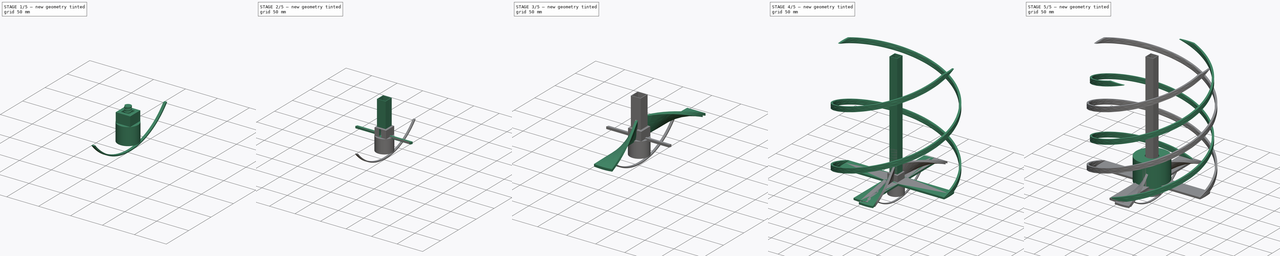
[diagram: build sequence overview — one tinted view per stage of 5, left to right]
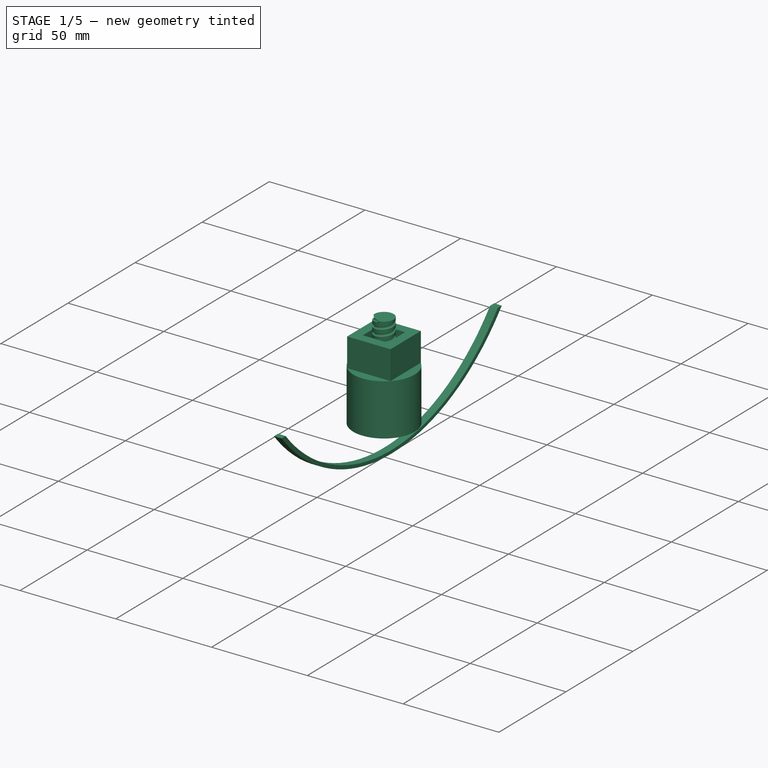
[diagram: stage 1 of 5 — iso view after this stage's code; geometry added in this stage tinted green]
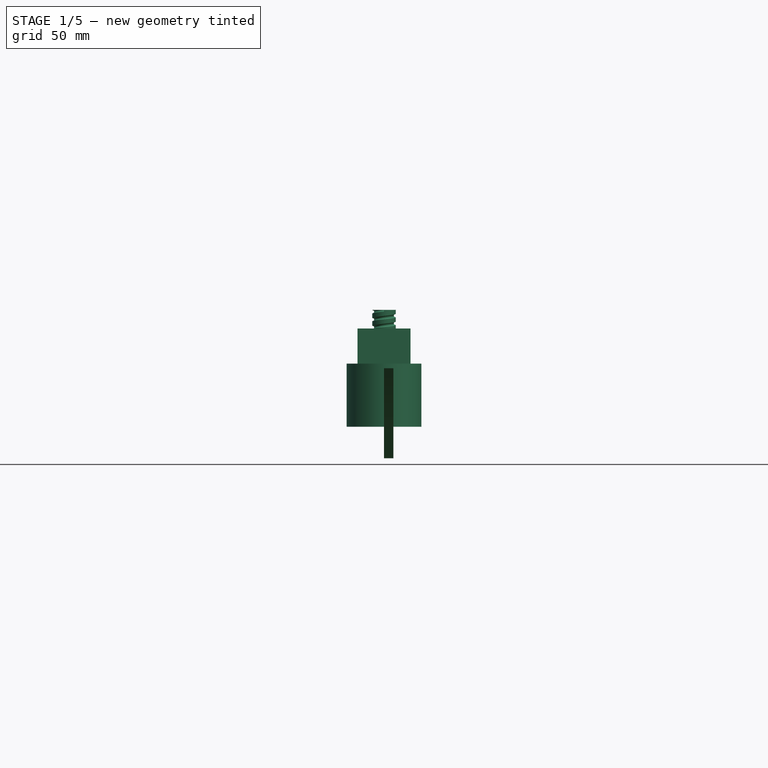
[diagram: stage 1 of 5 — front view after this stage's code; geometry added in this stage tinted green]
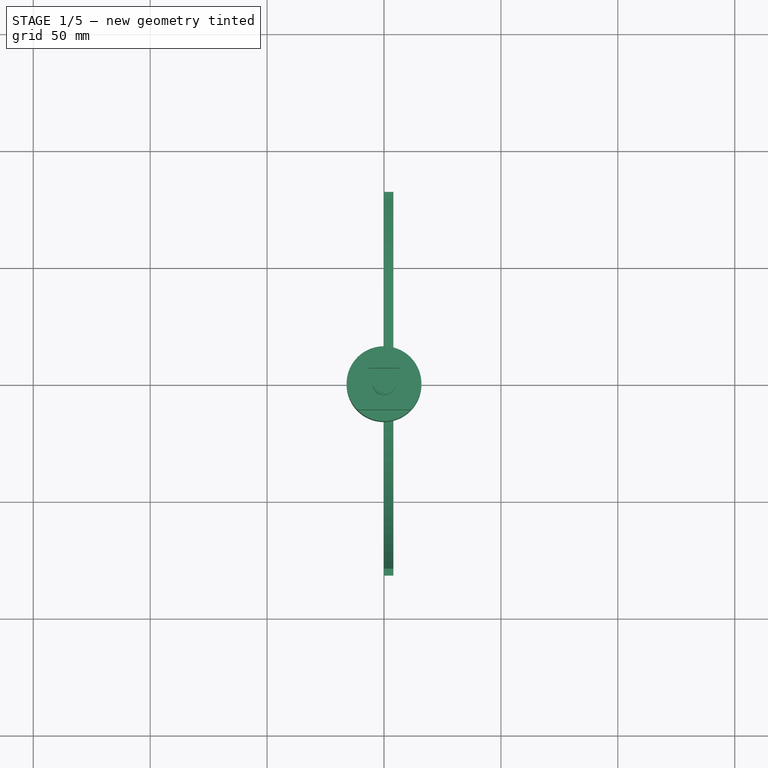
[diagram: stage 1 of 5 — top view after this stage's code; geometry added in this stage tinted green]
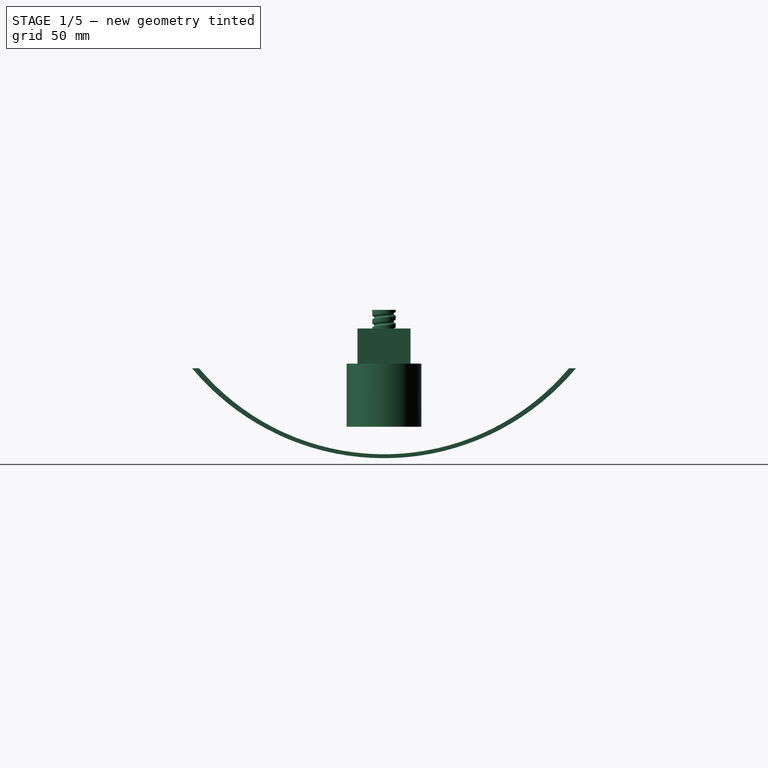
[diagram: stage 1 of 5 — right view after this stage's code; geometry added in this stage tinted green]
FCSTD DOCUMENT  (FreeCAD 0.21R33771 (Git))
Label: QfhAntenna2m-noSupport
License: All rights reserved
LicenseURL: http://en.wikipedia.org/wiki/All_rights_reserved
objects: Sketcher::SketchObject×26, PartDesign::Pad×13, PartDesign::Body×9, PartDesign::AdditiveHelix×6, PartDesign::Pocket×5, App::DocumentObjectGroup×3, Spreadsheet::Sheet×2, PartDesign::PolarPattern×2, PartDesign::FeatureBase×2, PartDesign::CoordinateSystem×1, PartDesign::Chamfer×1, PartDesign::SubtractiveHelix×1
note: 92 computed .brp shape members not serialized (recipe doc carries the construction recipe); baked Part::Feature solids carry a one-line shape summary decoded from their .brp

FEATURE [PartDesign::Body] Body014  label="DistancePin"
  Group = -> [Sketch057,Sketch058,Pad039,Pad038]
  Origin = -> Origin014
  Tip = -> Pad038
FEATURE [Sketcher::SketchObject] Sketch017
  FullyConstrained = true
  MapMode = 5
  Placement = pos=(0,0,0) rot=(1,0,0;3.14159rad)
  sketch-geometry (2):
    g0: Circle CenterX=0 CenterY=0 CenterZ=0 NormalX=0 NormalY=0 NormalZ=1 AngleXU=0 Radius=14
    g1: Circle CenterX=0 CenterY=0 CenterZ=0 NormalX=0 NormalY=0 NormalZ=1 AngleXU=0 Radius=16
  constraints (4):
    c: Coincident(g0,g-1)
    c: Coincident(g1,g0)
    c: Radius(g0) = 14
    c: Radius(g1) = 16
FEATURE [PartDesign::Pad] Pad040
  Direction = (0,0,-1)
  Length = 25
  Length2 = 10
  Placement = pos=(0,0,0) rot=(1,0,0;3.14159rad)
  Profile = -> Sketch017
  ReferenceAxis = -> Sketch017 [N_Axis]
  Type = 0
FEATURE [Sketcher::SketchObject] Sketch059
  ExternalGeometry = -> [Pad040]
  FullyConstrained = true
  MapMode = 5
  Support = -> [Pad040]
  sketch-geometry (1):
    g0: Circle CenterX=0 CenterY=0 CenterZ=0 NormalX=0 NormalY=0 NormalZ=1 AngleXU=0 Radius=16
  constraints (2):
    c: Coincident(g0,g-3)
    c: Tangent(g0,g-3)
FEATURE [PartDesign::Pad] Pad041
  BaseFeature = -> Pad040
  Direction = (0,-1e-16,1)
  Length = 2
  Length2 = 10
  Placement = pos=(0,0,0) rot=(1,0,0;3.14159rad)
  Profile = -> Sketch059
  ReferenceAxis = -> Sketch059 [N_Axis]
  Type = 0
FEATURE [Sketcher::SketchObject] Sketch060
  ExternalGeometry = -> [Pad041]
  FullyConstrained = true
  MapMode = 5
  Placement = pos=(0,-5e-16,2) rot=(0,0,1;0rad)
  Support = -> [Pad041]
  sketch-geometry (10):
    g0: LineSegment StartX=11.3137 StartY=-11.3137 StartZ=0 EndX=11.3137 EndY=11.3137 EndZ=0
    g1: LineSegment StartX=11.3137 StartY=11.3137 StartZ=0 EndX=-11.3137 EndY=11.3137 EndZ=0
    g2: LineSegment StartX=-11.3137 StartY=11.3137 StartZ=0 EndX=-11.3137 EndY=-11.3137 EndZ=0
    g3: LineSegment StartX=-11.3137 StartY=-11.3137 StartZ=0 EndX=11.3137 EndY=-11.3137 EndZ=0
    g4: Circle CenterX=0 CenterY=0 CenterZ=0 NormalX=0 NormalY=0 NormalZ=1 AngleXU=0 Radius=16
    g5: LineSegment StartX=6.5 StartY=-6.5 StartZ=0 EndX=6.5 EndY=6.5 EndZ=0
    g6: LineSegment StartX=6.5 StartY=6.5 StartZ=0 EndX=-6.5 EndY=6.5 EndZ=0
    g7: LineSegment StartX=-6.5 StartY=6.5 StartZ=0 EndX=-6.5 EndY=-6.5 EndZ=0
    g8: LineSegment StartX=-6.5 StartY=-6.5 StartZ=0 EndX=6.5 EndY=-6.5 EndZ=0
    g9: Circle CenterX=0 CenterY=0 CenterZ=0 NormalX=0 NormalY=0 NormalZ=1 AngleXU=0 Radius=9.19239
  constraints (28):
    c: Coincident(g0,g1)
    c: Coincident(g1,g2)
    c: Coincident(g2,g3)
    c: Coincident(g3,g0)
    c: Equal(g0,g1)
    c: Equal(g0,g2)
    c: Equal(g0,g3)
    c: PointOnObject(g0,g4)
    c: PointOnObject(g1,g4)
    c: PointOnObject(g2,g4)
    c: PointOnObject(g3,g4)
    c: Coincident(g4,g-1)
    c: PointOnObject(g0,g-3)
    c: Coincident(g5,g6)
    c: Coincident(g6,g7)
    c: Coincident(g7,g8)
    c: Coincident(g8,g5)
    c: Equal(g5,g6)
    c: Equal(g5,g7)
    c: Equal(g5,g8)
    c: PointOnObject(g5,g9)
    c: PointOnObject(g6,g9)
    c: PointOnObject(g7,g9)
    c: PointOnObject(g8,g9)
    c: DistanceX(g6,g6) = 13
    c: Horizontal(g6)
    c: Horizontal(g1)
    c: Coincident(g4,g9)
FEATURE [PartDesign::Pad] Pad042
  BaseFeature = -> Pad041
  Direction = (0,-4e-16,1)
  Length = 15
  Length2 = 10
  Placement = pos=(0,0,0) rot=(1,0,0;3.14159rad)
  Profile = -> Sketch060
  ReferenceAxis = -> Sketch060 [N_Axis]
  Type = 0
FEATURE [PartDesign::Body] Body008  label="Fork"
  Group = -> [Sketch017,LCS_7,Pad040,Sketch059,Pad041,Sketch060,Pad042,Sketch061,Pocket006,Sketch062,Pad043,Chamfer]
  Origin = -> Origin008
  Placement = pos=(0,-98.4,2.2e-14) rot=(-1,0,0;1.5708rad)
  Tip = -> Chamfer
FEATURE [App::DocumentObjectGroup] Group002  label="Support"
  Group = -> [Body008,Spreadsheet001,Body010]
FEATURE [App::DocumentObjectGroup] Group003  label="Matching"
FEATURE [Sketcher::SketchObject] Sketch063
  FullyConstrained = true
  MapMode = 5
  Support = -> [XY_Plane015]
  sketch-geometry (1):
    g0: Circle CenterX=0 CenterY=0 CenterZ=0 NormalX=0 NormalY=0 NormalZ=1 AngleXU=0 Radius=5
  constraints (2):
    c: Coincident(g0,g-1)
    c: Radius(g0) = 5
FEATURE [PartDesign::Pad] Pad044
  Direction = (0,0,1)
  Length = 25
  Length2 = 10
  Profile = -> Sketch063
  ReferenceAxis = -> Sketch063 [N_Axis]
  Type = 0
FEATURE [Sketcher::SketchObject] Sketch065
  FullyConstrained = false
  MapMode = 5
  Placement = pos=(0,0,0) rot=(0.57735,0.57735,0.57735;2.0944rad)
  Support = -> [YZ_Plane015]
  sketch-geometry (1):
    g0: Circle CenterX=4.94375 CenterY=0 CenterZ=0 NormalX=0 NormalY=0 NormalZ=1 AngleXU=0 Radius=0.75
  constraints (1):
    c: Diameter(g0) = 1.5
FEATURE [PartDesign::SubtractiveHelix] SubtractiveHelix001
  Angle = 0
  Axis = (-2e-16,3e-16,1)
  Base = (0,0,0)
  BaseFeature = -> Pad044
  Growth = 0
  HasBeenEdited = true
  Height = 25
  LeftHanded = false
  Mode = 2
  Outside = false
  Pitch = 3.33333
  Profile = -> Sketch065
  ReferenceAxis = -> Sketch065 [V_Axis]
  Turns = 7.5
FEATURE [PartDesign::Body] Body015  label="Coiltemplate_200nH"
  Group = -> [Sketch063,Pad044,Sketch065,SubtractiveHelix001]
  Origin = -> Origin015
  Tip = -> SubtractiveHelix001
FEATURE [Sketcher::SketchObject] Sketch066
  FullyConstrained = false
  MapMode = 5
  Placement = pos=(0,0,0) rot=(0.57735,0.57735,0.57735;2.0944rad)
  Support = -> [YZ_Plane016]
  sketch-geometry (4):
    g0: ArcOfCircle CenterX=0 CenterY=68.3732 CenterZ=0 NormalX=0 NormalY=0 NormalZ=1 AngleXU=0 Radius=106.825 StartAngle=3.83615 EndAngle=5.58863
    g1: ArcOfCircle CenterX=0 CenterY=66.6155 CenterZ=0 NormalX=0 NormalY=0 NormalZ=1 AngleXU=0 Radius=103.397 StartAngle=3.84166 EndAngle=5.58312
    g2: LineSegment StartX=-82.0778 StartY=1.563e-13 StartZ=0 EndX=-79.0778 EndY=5.68e-14 EndZ=0
    g3: LineSegment StartX=79.0778 StartY=0 StartZ=0 EndX=82.0778 EndY=0 EndZ=0
  constraints (11):
    c: PointOnObject(g0,g-2)
    c: PointOnObject(g0,g-1)
    c: PointOnObject(g0,g-1)
    c: PointOnObject(g1,g-2)
    c: PointOnObject(g1,g-1)
    c: PointOnObject(g1,g-1)
    c: DistanceX(g0,g1) = 3
    c: Coincident(g2,g1)
    c: Coincident(g3,g0)
    c: Coincident(g3,g1)
    c: Coincident(g2,g0)
FEATURE [PartDesign::Pad] Pad045
  Direction = (1,-2e-16,3e-16)
  Length = 4
  Length2 = 10
  Placement = pos=(0,0,0) rot=(1,1,1;2.0944rad)
  Profile = -> Sketch066
  ReferenceAxis = -> Sketch066 [N_Axis]
  Type = 0
FEATURE [PartDesign::Body] Body016  label="TopDistance"
  Group = -> [Sketch066,Pad045]
  Origin = -> Origin016
  Tip = -> Pad045
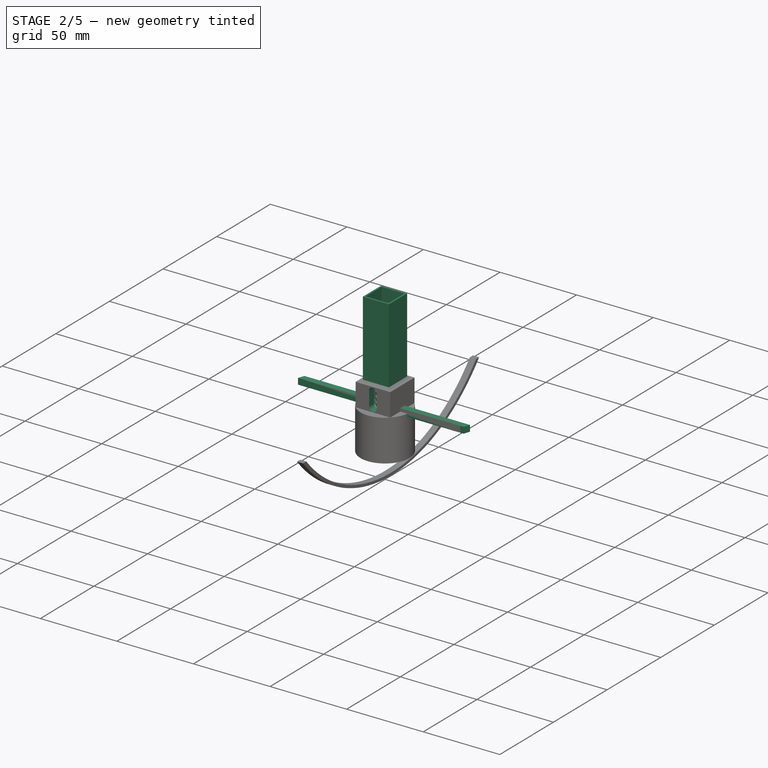
[diagram: stage 2 of 5 — iso view after this stage's code; geometry added in this stage tinted green]
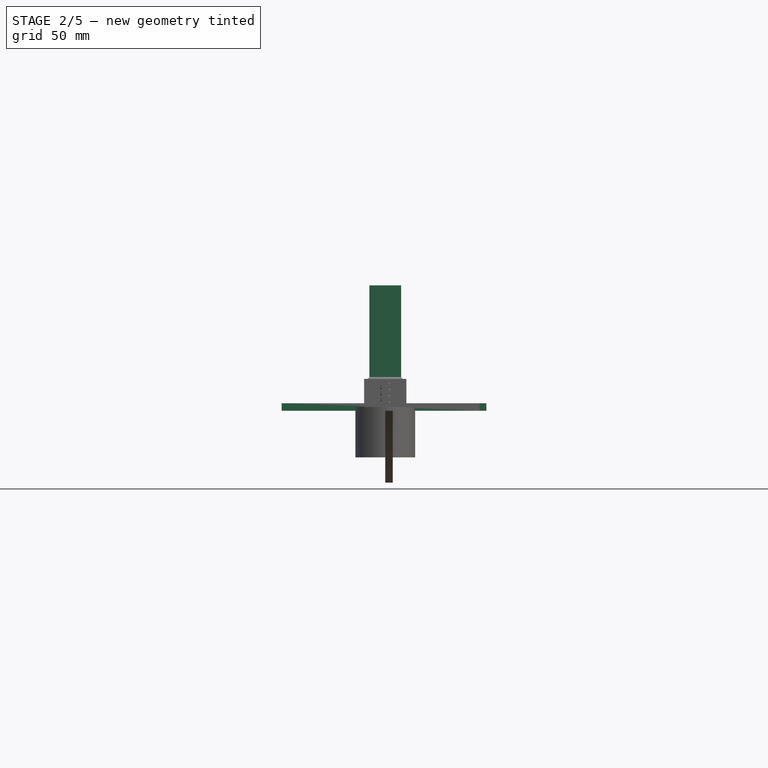
[diagram: stage 2 of 5 — front view after this stage's code; geometry added in this stage tinted green]
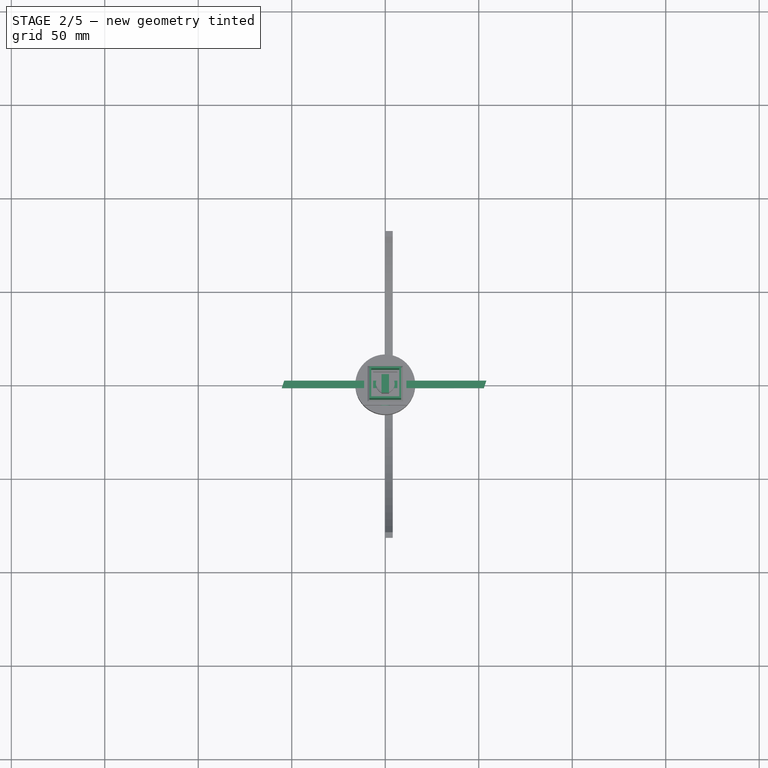
[diagram: stage 2 of 5 — top view after this stage's code; geometry added in this stage tinted green]
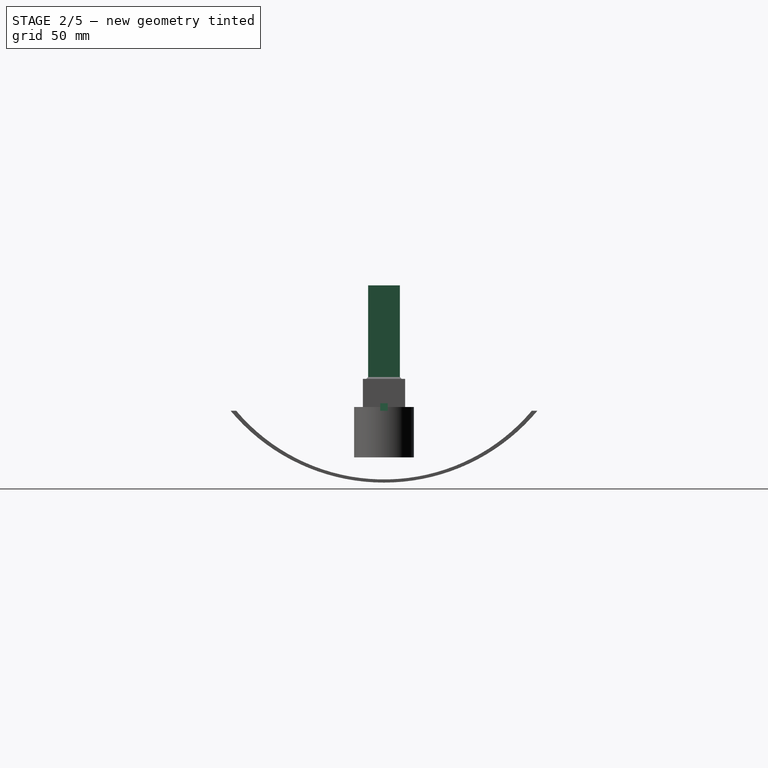
[diagram: stage 2 of 5 — right view after this stage's code; geometry added in this stage tinted green]
FEATURE [PartDesign::Body] Body  label="HelixAntenna"
  Group = -> [Sketch,Pad,Sketch046,Pad036,Sketch047,Sketch048,AdditiveHelix,PolarPattern001,Sketch049,AdditiveHelix001,PolarPattern002]
  Origin = -> Origin
  Tip = -> PolarPattern002
FEATURE [App::DocumentObjectGroup] Group  label="Antenna"
  Group = -> [Body]
FEATURE [Sketcher::SketchObject] Sketch050
  FullyConstrained = true
  MapMode = 5
  Support = -> [XY_Plane011]
  expr: Constraints[10] = Spreadsheet.helixCrossLength
  expr: Constraints[9] = Spreadsheet.helixThickness
  sketch-geometry (5):
    g0: LineSegment StartX=-2 StartY=-5 StartZ=0 EndX=-2 EndY=5 EndZ=0
    g1: LineSegment StartX=-2 StartY=5 StartZ=0 EndX=2 EndY=5 EndZ=0
    g2: LineSegment StartX=2 StartY=5 StartZ=0 EndX=2 EndY=-5 EndZ=0
    g3: LineSegment StartX=2 StartY=-5 StartZ=0 EndX=-2 EndY=-5 EndZ=0
    g4: GeomPoint X=2e-16 Y=4e-16 Z=0
  constraints (11):
    c: Coincident(g0,g1)
    c: Coincident(g1,g2)
    c: Coincident(g2,g3)
    c: Coincident(g3,g0)
    c: Horizontal(g1)
    c: Vertical(g0)
    c: Symmetric(g1,g0,g4)
    c: Symmetric(g0,g2,g-2)
    c: Symmetric(g1,g2,g-1)
    c: DistanceX(g0,g1) = 4
    c: DistanceY(g2,g1) = 10
FEATURE [PartDesign::Pad] Pad037
  Direction = (0,0,1)
  Length = 31.4795
  Length2 = 10
  Profile = -> Sketch050
  ReferenceAxis = -> Sketch050 [N_Axis]
  Type = 0
  expr: Length = Spreadsheet.helixBase
FEATURE [PartDesign::Body] Body013  label="SmallCrossover"
  Group = -> [Clone001,Sketch054,AdditiveHelix004,Sketch055,AdditiveHelix005,Sketch056,Pocket005]
  Origin = -> Origin013
  Tip = -> Pocket005
FEATURE [Sketcher::SketchObject] Sketch057
  FullyConstrained = true
  MapMode = 5
  Support = -> [XY_Plane014]
  expr: Constraints[5] = Spreadsheet.helixThickness / 2
  expr: Constraints[6] = Spreadsheet.helixThickness
  expr: Constraints[8] = Spreadsheet.helixElevation
  expr: Constraints[9] = Spreadsheet.D1Large / 2 - Spreadsheet.widthFoil
  sketch-geometry (4):
    g0: LineSegment StartX=52.7099 StartY=-2 StartZ=0 EndX=-55.3901 EndY=-2 EndZ=0
    g1: LineSegment StartX=-55.3901 StartY=-2 StartZ=0 EndX=-54.05 EndY=2 EndZ=0
    g2: LineSegment StartX=-54.05 StartY=2 StartZ=0 EndX=54.05 EndY=2 EndZ=0
    g3: LineSegment StartX=54.05 StartY=2 StartZ=0 EndX=52.7099 EndY=-2 EndZ=0
  constraints (11):
    c: Horizontal(g0)
    c: Coincident(g0,g1)
    c: Coincident(g1,g2)
    c: Coincident(g2,g3)
    c: Coincident(g3,g0)
    c: DistanceY(g-1,g1) = 2
    c: DistanceY(g0,g1) = 4
    c: Parallel(g1,g3)
    c: Angle(g1,g-2) = 0.323268
    c: DistanceX(g0,g0) = 108.1
    c: Symmetric(g1,g2,g-2)
FEATURE [Sketcher::SketchObject] Sketch058
  FullyConstrained = true
  MapMode = 5
  Support = -> [XY_Plane014]
  expr: Constraints[3] = Spreadsheet.D2Small / 2 - Spreadsheet.widthFoil
  expr: Constraints[5] = Spreadsheet.helixElevation
  sketch-geometry (6):
    g0: GeomPoint X=0 Y=0 Z=0
    g1: LineSegment StartX=-51.15 StartY=0 StartZ=0 EndX=51.15 EndY=0 EndZ=0
    g2: LineSegment StartX=-50.48 StartY=2 StartZ=0 EndX=-51.82 EndY=-2 EndZ=0
    g3: LineSegment StartX=51.82 StartY=2 StartZ=0 EndX=50.48 EndY=-2 EndZ=0
    g4: LineSegment StartX=51.82 StartY=2 StartZ=0 EndX=-50.48 EndY=2 EndZ=0
    g5: LineSegment StartX=-51.82 StartY=-2 StartZ=0 EndX=50.48 EndY=-2 EndZ=0
  constraints (16):
    c: Coincident(g0,g-1)
    c: PointOnObject(g1,g-1)
    c: Symmetric(g1,g1,g-2)
    c: DistanceX(g1,g1) = 102.3
    c: PointOnObject(g1,g2)
    c: Angle(g2,g-2) = 0.323268
    c: DistanceY(g-1,g2) = 2
    c: DistanceY(g2,g2) = 4
    c: Parallel(g2,g3)
    c: Horizontal(g3,g2)
    c: Horizontal(g2,g3)
    c: Coincident(g4,g3)
    c: Coincident(g4,g2)
    c: Coincident(g5,g2)
    c: Coincident(g5,g3)
    c: PointOnObject(g1,g3)
FEATURE [PartDesign::Pad] Pad039  label="SmallPin"
  Direction = (0,0,1)
  Length = 4
  Length2 = 10
  Profile = -> Sketch058
  ReferenceAxis = -> Sketch058 [N_Axis]
  Type = 0
  expr: Length = Spreadsheet.helixThickness
FEATURE [PartDesign::Pad] Pad038  label="LargePin"
  BaseFeature = -> Pad039
  Direction = (0,0,1)
  Length = 4
  Length2 = 10
  Profile = -> Sketch057
  ReferenceAxis = -> Sketch057 [N_Axis]
  Type = 0
  expr: Length = Spreadsheet.helixThickness
FEATURE [Sketcher::SketchObject] Sketch061
  ExternalGeometry = -> [Pad042]
  FullyConstrained = false
  MapMode = 5
  Placement = pos=(0,-11.3137,-5.5e-15) rot=(0,0.707107,-0.707107;3.14159rad)
  Support = -> [Pad042]
  sketch-geometry (4):
    g0: ArcOfCircle CenterX=0 CenterY=-4.86877 CenterZ=0 NormalX=0 NormalY=0 NormalZ=1 AngleXU=0 Radius=2.5 StartAngle=1e-16 EndAngle=3.14159
    g1: ArcOfCircle CenterX=0 CenterY=-13.9945 CenterZ=0 NormalX=0 NormalY=0 NormalZ=1 AngleXU=0 Radius=2.5 StartAngle=3.14159 EndAngle=6.28319
    g2: LineSegment StartX=-2.5 StartY=-4.86877 StartZ=0 EndX=-2.5 EndY=-13.9945 EndZ=0
    g3: LineSegment StartX=2.5 StartY=-13.9945 StartZ=0 EndX=2.5 EndY=-4.86877 EndZ=0
  constraints (8):
    c: Tangent(g0,g2) = -1.5708
    c: Tangent(g2,g1) = -1.5708
    c: Tangent(g1,g3) = -1.5708
    c: Tangent(g3,g0) = -1.5708
    c: Equal(g0,g1)
    c: PointOnObject(g0,g-2)
    c: PointOnObject(g1,g-2)
    c: DistanceX(g0,g0) = 5
FEATURE [PartDesign::Pocket] Pocket006
  BaseFeature = -> Pad042
  Direction = (0,1,4e-16)
  Length = 5
  Length2 = 5
  Placement = pos=(0,0,0) rot=(1,0,0;3.14159rad)
  Profile = -> Sketch061
  ReferenceAxis = -> Sketch061 [N_Axis]
  Type = 0
FEATURE [Sketcher::SketchObject] Sketch062
  FullyConstrained = true
  MapMode = 5
  Placement = pos=(0,-6.1e-15,17) rot=(0,0,1;0rad)
  Support = -> [Pocket006]
  sketch-geometry (10):
    g0: LineSegment StartX=-7.5 StartY=-7.5 StartZ=0 EndX=-7.5 EndY=7.5 EndZ=0
    g1: LineSegment StartX=-7.5 StartY=7.5 StartZ=0 EndX=7.5 EndY=7.5 EndZ=0
    g2: LineSegment StartX=7.5 StartY=7.5 StartZ=0 EndX=7.5 EndY=-7.5 EndZ=0
    g3: LineSegment StartX=7.5 StartY=-7.5 StartZ=0 EndX=-7.5 EndY=-7.5 EndZ=0
    g4: GeomPoint X=0 Y=0 Z=0
    g5: LineSegment StartX=8.5 StartY=8.5 StartZ=0 EndX=-8.5 EndY=8.5 EndZ=0
    g6: LineSegment StartX=-8.5 StartY=8.5 StartZ=0 EndX=-8.5 EndY=-8.5 EndZ=0
    g7: LineSegment StartX=-8.5 StartY=-8.5 StartZ=0 EndX=8.5 EndY=-8.5 EndZ=0
    g8: LineSegment StartX=8.5 StartY=-8.5 StartZ=0 EndX=8.5 EndY=8.5 EndZ=0
    g9: Circle CenterX=0 CenterY=0 CenterZ=0 NormalX=0 NormalY=0 NormalZ=1 AngleXU=0 Radius=12.0208
  constraints (26):
    c: Coincident(g0,g1)
    c: Coincident(g1,g2)
    c: Coincident(g2,g3)
    c: Coincident(g3,g0)
    c: Horizontal(g1)
    c: Horizontal(g3)
    c: Vertical(g0)
    c: Vertical(g2)
    c: Symmetric(g1,g0,g4)
    c: Coincident(g4,g-1)
    c: DistanceX(g1,g1) = 15
    c: DistanceY(g0,g0) = 15
    c: Coincident(g5,g6)
    c: Coincident(g6,g7)
    c: Coincident(g7,g8)
    c: Coincident(g8,g5)
    c: Equal(g5,g6)
    c: Equal(g5,g7)
    c: Equal(g5,g8)
    c: PointOnObject(g5,g9)
    c: PointOnObject(g6,g9)
    c: PointOnObject(g7,g9)
    c: PointOnObject(g8,g9)
    c: Coincident(g9,g4)
    c: DistanceY(g1,g5) = 1
    c: Horizontal(g5)
FEATURE [PartDesign::Pad] Pad043
  BaseFeature = -> Pocket006
  Direction = (0,-6e-16,1)
  Length = 50
  Length2 = 10
  Placement = pos=(0,0,0) rot=(1,0,0;3.14159rad)
  Profile = -> Sketch062
  ReferenceAxis = -> Sketch062 [N_Axis]
  Type = 0
FEATURE [PartDesign::Chamfer] Chamfer
  Angle = 45
  Base = -> Pad043 [Edge30,Edge31,Edge32,Edge29]
  BaseFeature = -> Pad043
  ChamferType = 0
  FlipDirection = false
  Placement = pos=(0,0,0) rot=(1,0,0;3.14159rad)
  Size = 1
  Size2 = 1
  SupportTransform = false
  UseAllEdges = false
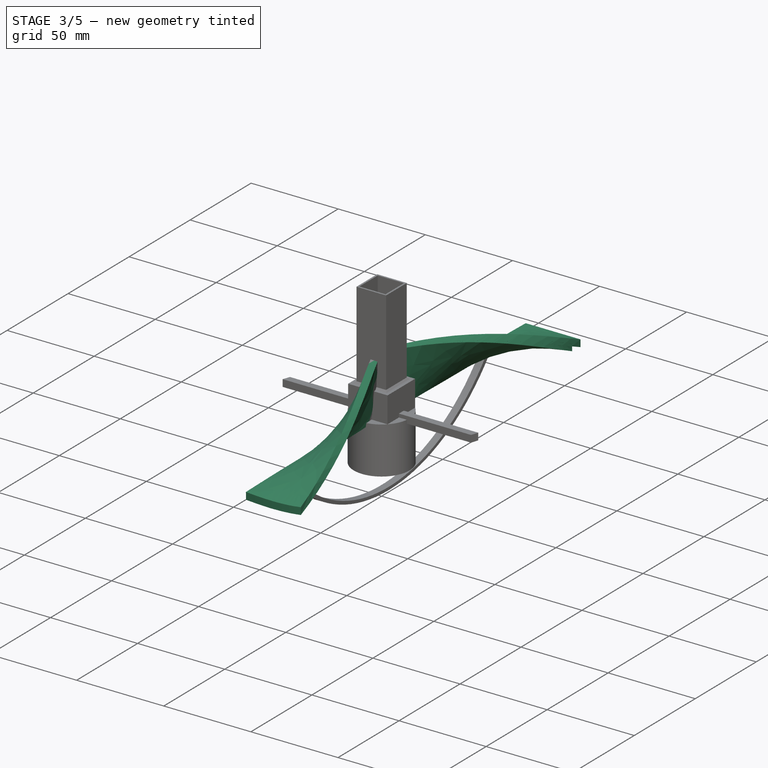
[diagram: stage 3 of 5 — iso view after this stage's code; geometry added in this stage tinted green]
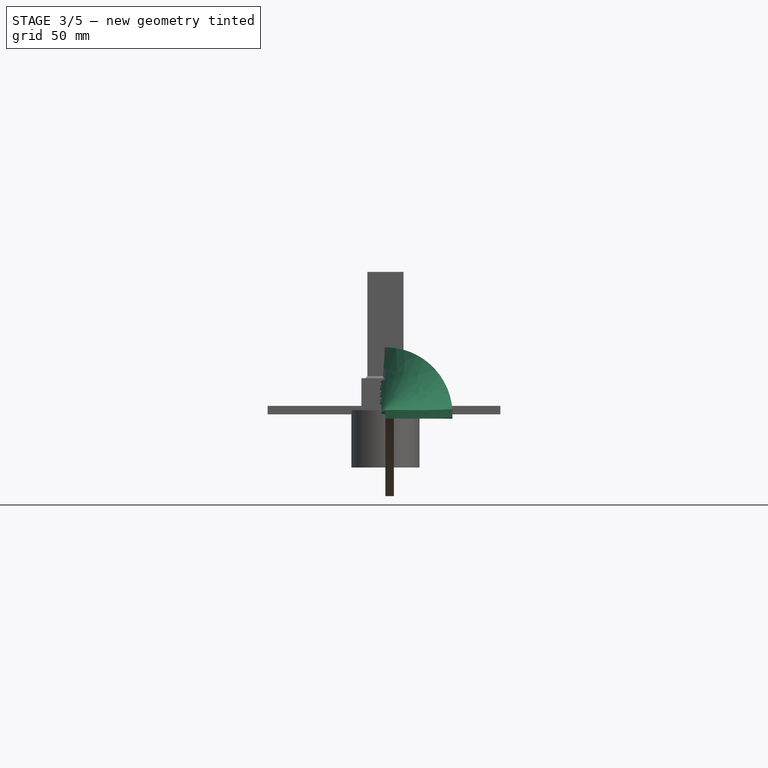
[diagram: stage 3 of 5 — front view after this stage's code; geometry added in this stage tinted green]
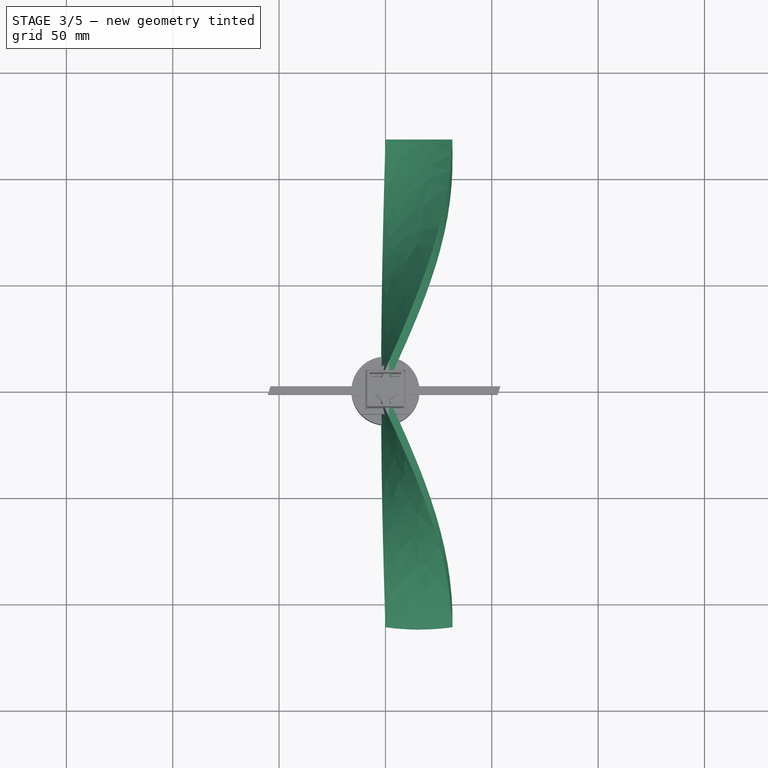
[diagram: stage 3 of 5 — top view after this stage's code; geometry added in this stage tinted green]
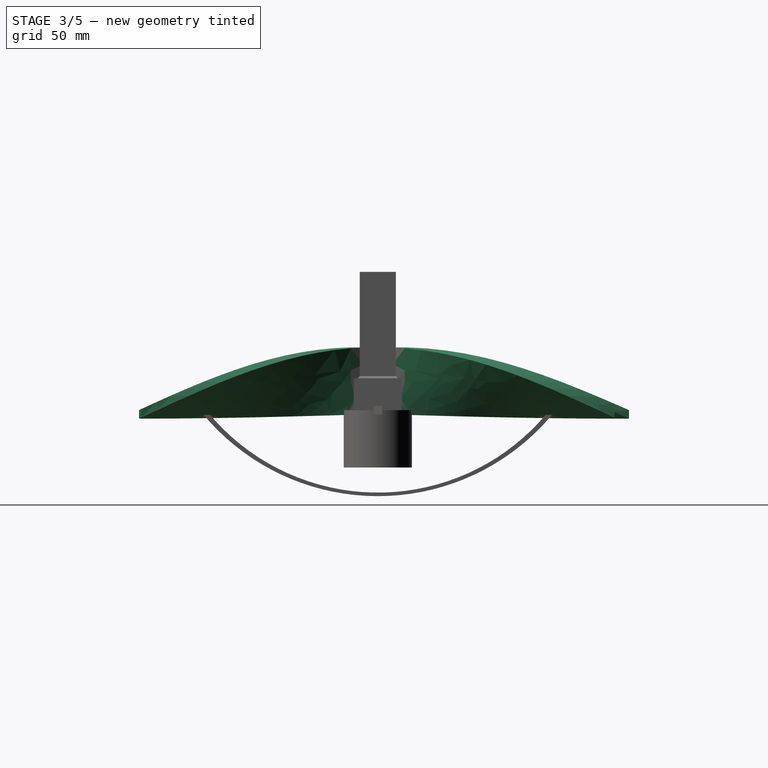
[diagram: stage 3 of 5 — right view after this stage's code; geometry added in this stage tinted green]
FEATURE [PartDesign::Body] Body011  label="CrossMiddlePiece"
  Group = -> [Sketch050,Pad037]
  Origin = -> Origin011
  Tip = -> Pad037
FEATURE [PartDesign::FeatureBase] Clone
  BaseFeature = -> Body011
FEATURE [Sketcher::SketchObject] Sketch051
  ExternalGeometry = -> [Clone]
  FullyConstrained = true
  MapMode = 5
  Placement = pos=(0,5,0) rot=(0,0.707107,0.707107;3.14159rad)
  Support = -> [Clone]
  sketch-geometry (4):
    g0: LineSegment StartX=-2 StartY=31.4795 StartZ=0 EndX=2 EndY=31.4795 EndZ=0
    g1: LineSegment StartX=2 StartY=31.4795 StartZ=0 EndX=2 EndY=0 EndZ=0
    g2: LineSegment StartX=2 StartY=0 StartZ=0 EndX=-2 EndY=0 EndZ=0
    g3: LineSegment StartX=-2 StartY=0 StartZ=0 EndX=-2 EndY=31.4795 EndZ=0
  constraints (10):
    c: Coincident(g0,g1)
    c: Coincident(g2,g3)
    c: Coincident(g3,g0)
    c: Horizontal(g0)
    c: Horizontal(g2)
    c: Vertical(g1)
    c: Vertical(g3)
    c: Coincident(g0,g-4)
    c: Coincident(g1,g-3)
    c: Coincident(g1,g2)
FEATURE [PartDesign::AdditiveHelix] AdditiveHelix002
  Angle = 0
  Axis = (1e-16,1,-1e-16)
  Base = (0,0,0)
  BaseFeature = -> Clone
  Growth = 0
  HasBeenEdited = true
  Height = 113.1
  LeftHanded = false
  Mode = 2
  Outside = false
  Pitch = 452.4
  Profile = -> Sketch051
  ReferenceAxis = -> Y_Axis012
  Turns = 0.25
  expr: Height = (Spreadsheet.D1Large - Spreadsheet.helixCrossLength) / 2
FEATURE [PartDesign::Body] Body012  label="LongCrossover"
  Group = -> [Clone,Sketch051,AdditiveHelix002,Sketch052,AdditiveHelix003,Sketch053,Pocket]
  Origin = -> Origin012
  Tip = -> Pocket
FEATURE [PartDesign::FeatureBase] Clone001
  BaseFeature = -> Body011
FEATURE [Sketcher::SketchObject] Sketch054
  ExternalGeometry = -> [Clone001]
  FullyConstrained = true
  MapMode = 5
  Placement = pos=(0,5,0) rot=(0,0.707107,0.707107;3.14159rad)
  Support = -> [Clone001]
  sketch-geometry (4):
    g0: LineSegment StartX=-2 StartY=31.4795 StartZ=0 EndX=2 EndY=31.4795 EndZ=0
    g1: LineSegment StartX=2 StartY=31.4795 StartZ=0 EndX=2 EndY=0 EndZ=0
    g2: LineSegment StartX=2 StartY=0 StartZ=0 EndX=-2 EndY=0 EndZ=0
    g3: LineSegment StartX=-2 StartY=0 StartZ=0 EndX=-2 EndY=31.4795 EndZ=0
  constraints (10):
    c: Coincident(g0,g1)
    c: Coincident(g1,g2)
    c: Coincident(g2,g3)
    c: Coincident(g3,g0)
    c: Horizontal(g0)
    c: Horizontal(g2)
    c: Vertical(g1)
    c: Vertical(g3)
    c: Coincident(g1,g-3)
    c: Coincident(g0,g-4)
FEATURE [PartDesign::AdditiveHelix] AdditiveHelix004
  Angle = 0
  Axis = (1e-16,1,-1e-16)
  Base = (0,0,0)
  BaseFeature = -> Clone001
  Growth = 0
  HasBeenEdited = true
  Height = 107.3
  LeftHanded = false
  Mode = 2
  Outside = false
  Pitch = 429.2
  Profile = -> Sketch054
  ReferenceAxis = -> Y_Axis013
  Turns = 0.25
  expr: Height = (Spreadsheet.D2Small - Spreadsheet.helixCrossLength) / 2
FEATURE [Sketcher::SketchObject] Sketch055
  ExternalGeometry = -> [AdditiveHelix004]
  FullyConstrained = true
  MapMode = 5
  Placement = pos=(0,-5,0) rot=(1,0,0;1.5708rad)
  Support = -> [AdditiveHelix004]
  sketch-geometry (4):
    g0: LineSegment StartX=-2 StartY=31.4795 StartZ=0 EndX=2 EndY=31.4795 EndZ=0
    g1: LineSegment StartX=2 StartY=31.4795 StartZ=0 EndX=2 EndY=0 EndZ=0
    g2: LineSegment StartX=2 StartY=0 StartZ=0 EndX=-2 EndY=0 EndZ=0
    g3: LineSegment StartX=-2 StartY=0 StartZ=0 EndX=-2 EndY=31.4795 EndZ=0
  constraints (10):
    c: Coincident(g0,g1)
    c: Coincident(g1,g2)
    c: Coincident(g2,g3)
    c: Coincident(g3,g0)
    c: Horizontal(g0)
    c: Horizontal(g2)
    c: Vertical(g1)
    c: Vertical(g3)
    c: Coincident(g1,g-3)
    c: Coincident(g-4,g0)
FEATURE [PartDesign::AdditiveHelix] AdditiveHelix005
  Angle = 0
  Axis = (1e-16,1,-1e-16)
  Base = (0,0,0)
  BaseFeature = -> AdditiveHelix004
  Growth = 0
  HasBeenEdited = true
  Height = 107.3
  LeftHanded = true
  Mode = 2
  Outside = false
  Pitch = 429.2
  Profile = -> Sketch055
  ReferenceAxis = -> Y_Axis013
  Reversed = true
  Turns = 0.25
  expr: Height = (Spreadsheet.D2Small - Spreadsheet.helixCrossLength) / 2
FEATURE [Sketcher::SketchObject] Sketch056
  FullyConstrained = true
  MapMode = 5
  Support = -> [XY_Plane013]
  expr: Constraints[2] = Spreadsheet.helixBase / 2
  expr: Constraints[3] = Spreadsheet.D2Small
  sketch-geometry (2):
    g0: Circle CenterX=15.7397 CenterY=0 CenterZ=0 NormalX=0 NormalY=0 NormalZ=1 AngleXU=0 Radius=112.3
    g1: Circle CenterX=15.7397 CenterY=0 CenterZ=0 NormalX=0 NormalY=0 NormalZ=1 AngleXU=0 Radius=122.3
  constraints (5):
    c: PointOnObject(g0,g-1)
    c: Coincident(g1,g0)
    c: DistanceX(g-1,g0) = 15.7397
    c: Diameter(g0) = 224.6
    c: Distance(g0,g1) = 10
FEATURE [PartDesign::Pocket] Pocket005
  BaseFeature = -> AdditiveHelix005
  Direction = (0,0,-1)
  Length = 10
  Length2 = 5
  Profile = -> Sketch056
  ReferenceAxis = -> Sketch056 [N_Axis]
  Reversed = true
  Type = 4
  expr: Length = Spreadsheet.helixCrossLength
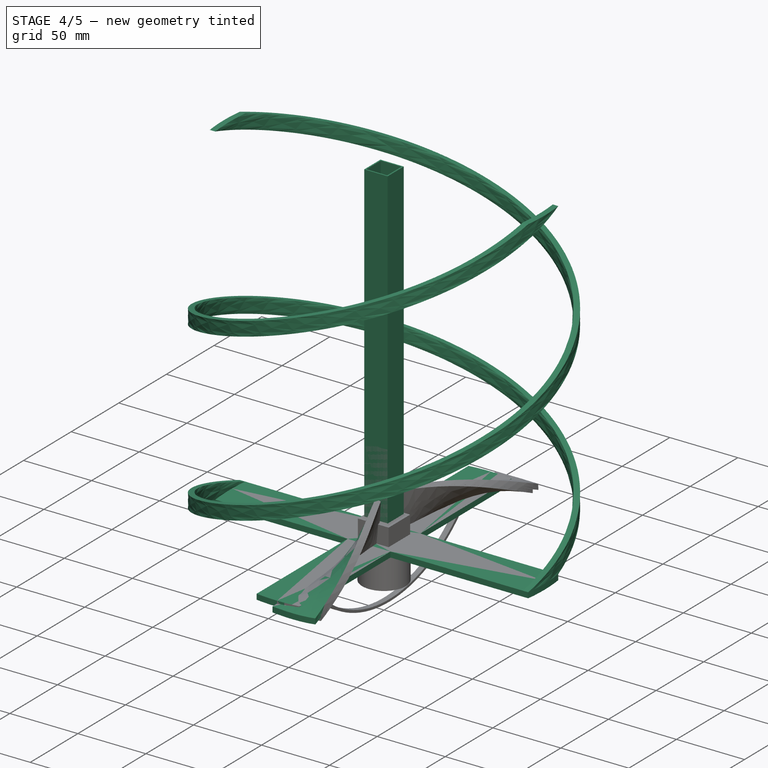
[diagram: stage 4 of 5 — iso view after this stage's code; geometry added in this stage tinted green]
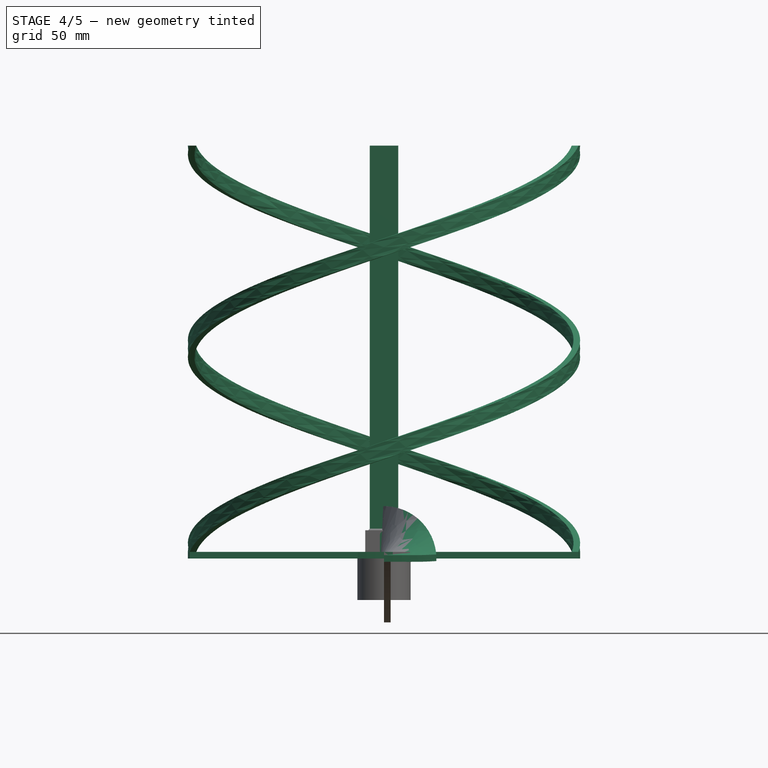
[diagram: stage 4 of 5 — front view after this stage's code; geometry added in this stage tinted green]
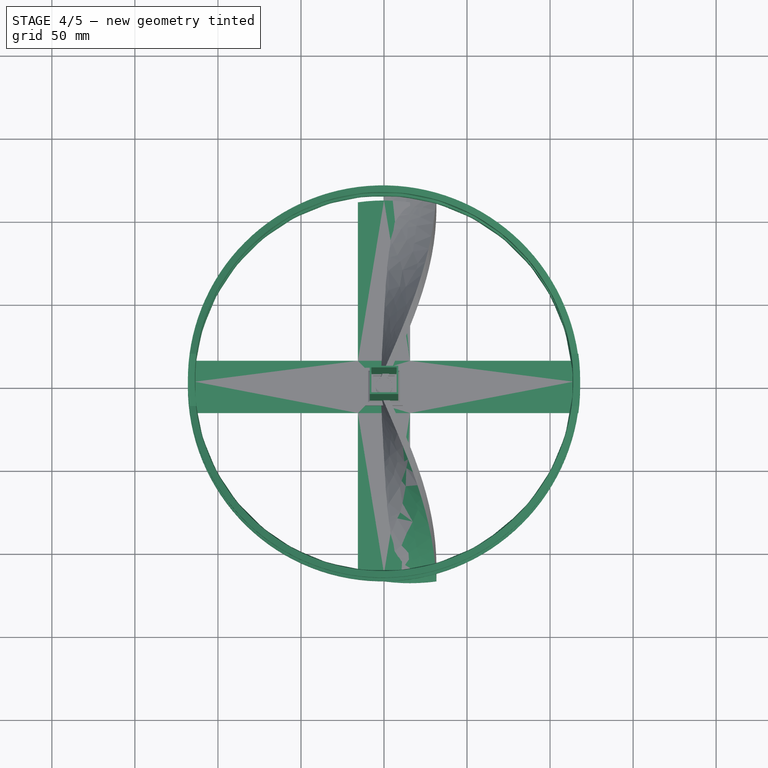
[diagram: stage 4 of 5 — top view after this stage's code; geometry added in this stage tinted green]
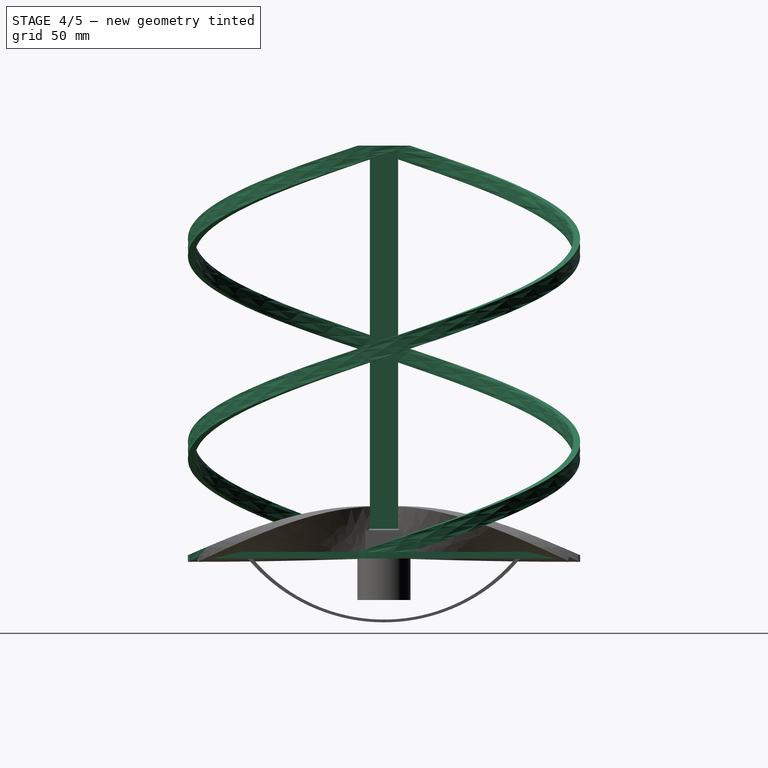
[diagram: stage 4 of 5 — right view after this stage's code; geometry added in this stage tinted green]
FEATURE [PartDesign::Body] Body010  label="Insert"
  Group = -> [Sketch018,Pad013,Sketch019,Pocket002,Sketch020,Pad014,Sketch021,Pocket003]
  Origin = -> Origin010
  Placement = pos=(-6e-15,-199.6,0) rot=(-0.998099,-0.043578,-0.043578;1.5727rad)
  Tip = -> Pocket003
FEATURE [PartDesign::CoordinateSystem] LCS_7
  AttacherType = Attacher::AttachEngine3D
FEATURE [Sketcher::SketchObject] Sketch
  FullyConstrained = true
  MapMode = 5
  Support = -> [XY_Plane]
  expr: Constraints[1] = Spreadsheet.helixBase
  expr: Constraints[25] = Spreadsheet.helixBase
  expr: Constraints[29] = Spreadsheet.D2Small
  expr: Constraints[4] = Spreadsheet.D1Large
  expr: Constraints[50] = 12.4
  sketch-geometry (19):
    g0: ArcOfCircle CenterX=0 CenterY=0 CenterZ=0 NormalX=0 NormalY=0 NormalZ=1 AngleXU=0 Radius=118.1 StartAngle=3.00792 EndAngle=3.27527
    g1: ArcOfCircle CenterX=0 CenterY=0 CenterZ=0 NormalX=0 NormalY=0 NormalZ=1 AngleXU=0 Radius=118.1 StartAngle=6.14951 EndAngle=6.41686
    g2: ArcOfCircle CenterX=0 CenterY=0 CenterZ=0 NormalX=0 NormalY=0 NormalZ=1 AngleXU=0 Radius=112.3 StartAngle=1.43018 EndAngle=1.71142
    g3: ArcOfCircle CenterX=0 CenterY=0 CenterZ=0 NormalX=0 NormalY=0 NormalZ=1 AngleXU=0 Radius=112.3 StartAngle=4.57177 EndAngle=4.85301
    g4: LineSegment StartX=-117.046 StartY=15.7397 StartZ=0 EndX=-15.7397 EndY=15.7397 EndZ=0
    g5: LineSegment StartX=-15.7397 StartY=15.7397 StartZ=0 EndX=-15.7397 EndY=111.192 EndZ=0
    g6: LineSegment StartX=15.7397 StartY=111.192 StartZ=0 EndX=15.7397 EndY=15.7397 EndZ=0
    g7: LineSegment StartX=15.7397 StartY=15.7397 StartZ=0 EndX=117.046 EndY=15.7397 EndZ=0
    g8: LineSegment StartX=117.046 StartY=-15.7397 StartZ=0 EndX=15.7397 EndY=-15.7397 EndZ=0
    g9: LineSegment StartX=15.7397 StartY=-15.7397 StartZ=0 EndX=15.7397 EndY=-111.192 EndZ=0
    g10: LineSegment StartX=-117.046 StartY=-15.7397 StartZ=0 EndX=-15.7397 EndY=-15.7397 EndZ=0
    g11: LineSegment StartX=-15.7397 StartY=-15.7397 StartZ=0 EndX=-15.7397 EndY=-111.192 EndZ=0
    g12: LineSegment StartX=3.1 StartY=-5.36936 StartZ=0 EndX=6.2 EndY=2e-15 EndZ=0
    g13: LineSegment StartX=6.2 StartY=2e-15 StartZ=0 EndX=3.1 EndY=5.36936 EndZ=0
    g14: LineSegment StartX=3.1 StartY=5.36936 StartZ=0 EndX=-3.1 EndY=5.36936 EndZ=0
    g15: LineSegment StartX=-3.1 StartY=5.36936 StartZ=0 EndX=-6.2 EndY=2e-16 EndZ=0
    g16: LineSegment StartX=-6.2 StartY=2e-16 StartZ=0 EndX=-3.1 EndY=-5.36936 EndZ=0
    g17: LineSegment StartX=-3.1 StartY=-5.36936 StartZ=0 EndX=3.1 EndY=-5.36936 EndZ=0
    g18: Circle CenterX=0 CenterY=0 CenterZ=0 NormalX=0 NormalY=0 NormalZ=1 AngleXU=0 Radius=6.2
  constraints (48):
    c: Coincident(g0,g-1)
    c: DistanceY(g0,g0) = 31.4795
    c: Horizontal(g0,g1)
    c: Symmetric(g0,g1,g-2)
    c: Distance(g0,g1) = 236.2
    c: Coincident(g0,g1)
    c: Coincident(g2,g0)
    c: Coincident(g3,g0)
    c: Symmetric(g2,g3,g-1)
    c: Vertical(g3,g2)
    c: Coincident(g4,g0)
    c: Horizontal(g4)
    c: Coincident(g5,g4)
    c: Coincident(g5,g2)
    c: Coincident(g6,g2)
    c: Vertical(g6)
    c: Coincident(g7,g6)
    c: Coincident(g7,g1)
    c: Coincident(g8,g1)
    c: Coincident(g9,g8)
    c: Coincident(g9,g3)
    c: Vertical(g9)
    c: Coincident(g10,g0)
    c: Coincident(g11,g10)
    c: Coincident(g11,g3)
    c: DistanceX(g2,g2) = 31.4795
    c: Perpendicular(g5,g4)
    c: Perpendicular(g11,g10)
    c: Perpendicular(g8,g9)
    c: Distance(g2,g3) = 224.6
    c: Symmetric(g4,g6,g-2)
    c: Symmetric(g4,g10,g-1)
    c: Coincident(g12,g13)
    c: Coincident(g13,g14)
    c: Coincident(g14,g15)
    c: Coincident(g15,g16)
    c: Coincident(g16,g17)
    c: Coincident(g17,g12)
    c: Equal(g12, g13-g17) x5
    c: PointOnObject(g12,g18)
    c: PointOnObject(g13,g18)
    c: PointOnObject(g14,g18)
    c: PointOnObject(g15,g18)
    c: PointOnObject(g16,g18)
    c: PointOnObject(g17,g18)
    c: Coincident(g18,g0)
    c: Diameter(g18) = 12.4
    c: Horizontal(g17)
FEATURE [PartDesign::Pad] Pad  label="BaseTop"
  Direction = (0,0,1)
  Length = 4
  Length2 = 10
  Profile = -> Sketch
  ReferenceAxis = -> Sketch [N_Axis]
  Type = 0
  expr: Length = Spreadsheet.helixThickness
FEATURE [Sketcher::SketchObject] Sketch046
  FullyConstrained = true
  MapMode = 5
  Placement = pos=(0,0,4) rot=(0,0,1;0rad)
  Support = -> [Pad]
  expr: Constraints[2] = Spreadsheet.D1Large - Spreadsheet.helixThickness
  expr: Constraints[4] = Spreadsheet.helixThickness
  sketch-geometry (12):
    g0: Circle CenterX=-116.1 CenterY=0 CenterZ=0 NormalX=0 NormalY=0 NormalZ=1 AngleXU=0 Radius=2
    g1: Circle CenterX=116.1 CenterY=0 CenterZ=0 NormalX=0 NormalY=0 NormalZ=1 AngleXU=0 Radius=2
    g2: LineSegment StartX=-7.6 StartY=7.5 StartZ=0 EndX=-7.6 EndY=-7.5 EndZ=0
    g3: LineSegment StartX=-7.6 StartY=-7.5 StartZ=0 EndX=7.6 EndY=-7.5 EndZ=0
    g4: LineSegment StartX=7.6 StartY=-7.5 StartZ=0 EndX=7.6 EndY=7.5 EndZ=0
    g5: LineSegment StartX=7.6 StartY=7.5 StartZ=0 EndX=-7.6 EndY=7.5 EndZ=0
    g6: GeomPoint X=0 Y=0 Z=0
    g7: LineSegment StartX=-8.6 StartY=8.5 StartZ=0 EndX=-8.6 EndY=-8.5 EndZ=0
    g8: LineSegment StartX=-8.6 StartY=-8.5 StartZ=0 EndX=8.6 EndY=-8.5 EndZ=0
    g9: LineSegment StartX=8.6 StartY=-8.5 StartZ=0 EndX=8.6 EndY=8.5 EndZ=0
    g10: LineSegment StartX=8.6 StartY=8.5 StartZ=0 EndX=-8.6 EndY=8.5 EndZ=0
    g11: GeomPoint X=0 Y=0 Z=0
  constraints (29):
    c: PointOnObject(g0,g-1)
    c: Symmetric(g0,g1,g-2)
    c: DistanceX(g0,g1) = 232.2
    c: Equal(g1,g0)
    c: Diameter(g1) = 4
    c: Coincident(g2,g3)
    c: Coincident(g3,g4)
    c: Coincident(g4,g5)
    c: Coincident(g5,g2)
    c: Horizontal(g3)
    c: Horizontal(g5)
    c: Vertical(g2)
    c: Vertical(g4)
    c: Symmetric(g3,g2,g6)
    c: Coincident(g6,g-1)
    c: Coincident(g7,g8)
    c: Coincident(g8,g9)
    c: Coincident(g9,g10)
    c: Coincident(g10,g7)
    c: Horizontal(g8)
    c: Horizontal(g10)
    c: Vertical(g7)
    c: Vertical(g9)
    c: Symmetric(g8,g7,g11)
    c: Coincident(g11,g6)
    c: DistanceX(g5,g5) = 15.2
    c: DistanceY(g4,g4) = 15
    c: DistanceX(g4,g9) = 1
    c: DistanceY(g4,g9) = 1
FEATURE [PartDesign::Pad] Pad036  label="LargeSupport"
  BaseFeature = -> Pad
  Direction = (0,0,1)
  Length = 244.6
  Length2 = 10
  Profile = -> Sketch046
  ReferenceAxis = -> Sketch046 [N_Axis]
  Type = 0
  expr: Length = Spreadsheet.H1Large - Spreadsheet.helixThickness
FEATURE [Sketcher::SketchObject] Sketch047
  FullyConstrained = true
  MapMode = 5
  Placement = pos=(0,0,4) rot=(0,0,1;0rad)
  Support = -> [Pad036]
  expr: Constraints[2] = Spreadsheet.D2Small - Spreadsheet.helixThickness
  expr: Constraints[4] = Spreadsheet.helixThickness
  sketch-geometry (2):
    g0: Circle CenterX=0 CenterY=110.3 CenterZ=0 NormalX=0 NormalY=0 NormalZ=1 AngleXU=0 Radius=2
    g1: Circle CenterX=0 CenterY=-110.3 CenterZ=0 NormalX=0 NormalY=0 NormalZ=1 AngleXU=0 Radius=2
  constraints (5):
    c: PointOnObject(g0,g-2)
    c: Symmetric(g0,g1,g-1)
    c: DistanceY(g1,g0) = 220.6
    c: Equal(g0,g1)
    c: Diameter(g0) = 4
FEATURE [Sketcher::SketchObject] Sketch048
  FullyConstrained = false
  MapMode = 5
  Placement = pos=(0,0,4) rot=(0,0,1;0rad)
  expr: Constraints[1] = Spreadsheet.helixThickness
  sketch-geometry (4):
    g0: ArcOfCircle CenterX=0 CenterY=0 CenterZ=0 NormalX=0 NormalY=0 NormalZ=1 AngleXU=0 Radius=118.1 StartAngle=3.00792 EndAngle=3.27527
    g1: ArcOfCircle CenterX=24.0841 CenterY=0 CenterZ=0 NormalX=0 NormalY=0 NormalZ=1 AngleXU=0 Radius=138.031 StartAngle=3.02731 EndAngle=3.25587
    g2: LineSegment StartX=-113.046 StartY=15.7397 StartZ=0 EndX=-117.046 EndY=15.7397 EndZ=0
    g3: LineSegment StartX=-117.046 StartY=-15.7397 StartZ=0 EndX=-113.046 EndY=-15.7397 EndZ=0
  constraints (7):
    c: PointOnObject(g1,g-1)
    c: DistanceX(g0,g1) = 4
    c: Coincident(g2,g1)
    c: Coincident(g3,g0)
    c: Coincident(g3,g1)
    c: Horizontal(g3)
    c: Coincident(g2,g0)
FEATURE [PartDesign::AdditiveHelix] AdditiveHelix  label="LargeHelixA"
  Angle = 0
  Axis = (1e-16,1e-16,1)
  Base = (0,0,0)
  BaseFeature = -> Pad036
  Growth = 0
  HasBeenEdited = true
  Height = 244.6
  LeftHanded = false
  Mode = 2
  Outside = false
  Pitch = 244.6
  Profile = -> Sketch048
  ReferenceAxis = -> Z_Axis
  Turns = 1
  expr: Height = Spreadsheet.H1Large - Spreadsheet.helixThickness
  expr: Turns = Spreadsheet.turns
FEATURE [PartDesign::PolarPattern] PolarPattern001  label="LargeHelixB"
  Angle = 360
  Axis = -> Sketch048 [N_Axis]
  BaseFeature = -> AdditiveHelix
  Occurrences = 2
  Originals = -> [AdditiveHelix]
FEATURE [Sketcher::SketchObject] Sketch052
  ExternalGeometry = -> [AdditiveHelix002]
  FullyConstrained = true
  MapMode = 5
  Placement = pos=(0,-5,0) rot=(1,0,0;1.5708rad)
  Support = -> [AdditiveHelix002]
  sketch-geometry (4):
    g0: LineSegment StartX=-2 StartY=31.4795 StartZ=0 EndX=2 EndY=31.4795 EndZ=0
    g1: LineSegment StartX=2 StartY=31.4795 StartZ=0 EndX=2 EndY=0 EndZ=0
    g2: LineSegment StartX=2 StartY=0 StartZ=0 EndX=-2 EndY=0 EndZ=0
    g3: LineSegment StartX=-2 StartY=0 StartZ=0 EndX=-2 EndY=31.4795 EndZ=0
  constraints (10):
    c: Coincident(g0,g1)
    c: Coincident(g1,g2)
    c: Coincident(g2,g3)
    c: Coincident(g3,g0)
    c: Horizontal(g0)
    c: Horizontal(g2)
    c: Vertical(g1)
    c: Vertical(g3)
    c: Coincident(g-4,g1)
    c: Coincident(g-3,g0)
FEATURE [PartDesign::AdditiveHelix] AdditiveHelix003
  Angle = 0
  Axis = (1e-16,1,-1e-16)
  Base = (0,0,0)
  BaseFeature = -> AdditiveHelix002
  Growth = 0
  HasBeenEdited = true
  Height = 113.1
  LeftHanded = true
  Mode = 2
  Outside = false
  Pitch = 452.4
  Profile = -> Sketch052
  ReferenceAxis = -> Y_Axis012
  Reversed = true
  Turns = 0.25
  expr: Height = (Spreadsheet.D1Large - Spreadsheet.helixCrossLength) / 2
FEATURE [Sketcher::SketchObject] Sketch053
  FullyConstrained = true
  MapMode = 5
  Support = -> [XY_Plane012]
  expr: Constraints[2] = Spreadsheet.helixBase / 2
  expr: Constraints[3] = Spreadsheet.D1Large
  sketch-geometry (2):
    g0: Circle CenterX=15.7397 CenterY=0 CenterZ=0 NormalX=0 NormalY=0 NormalZ=1 AngleXU=0 Radius=118.1
    g1: Circle CenterX=15.7397 CenterY=0 CenterZ=0 NormalX=0 NormalY=0 NormalZ=1 AngleXU=0 Radius=128.1
  constraints (5):
    c: PointOnObject(g0,g-1)
    c: Coincident(g1,g0)
    c: DistanceX(g-1,g0) = 15.7397
    c: Diameter(g0) = 236.2
    c: Distance(g0,g1) = 10
FEATURE [PartDesign::Pocket] Pocket
  BaseFeature = -> AdditiveHelix003
  Direction = (0,0,-1)
  Length = 31.4795
  Length2 = 5
  Midplane = true
  Profile = -> Sketch053
  ReferenceAxis = -> Sketch053 [N_Axis]
  Type = 1
  expr: Length = Spreadsheet.helixBase
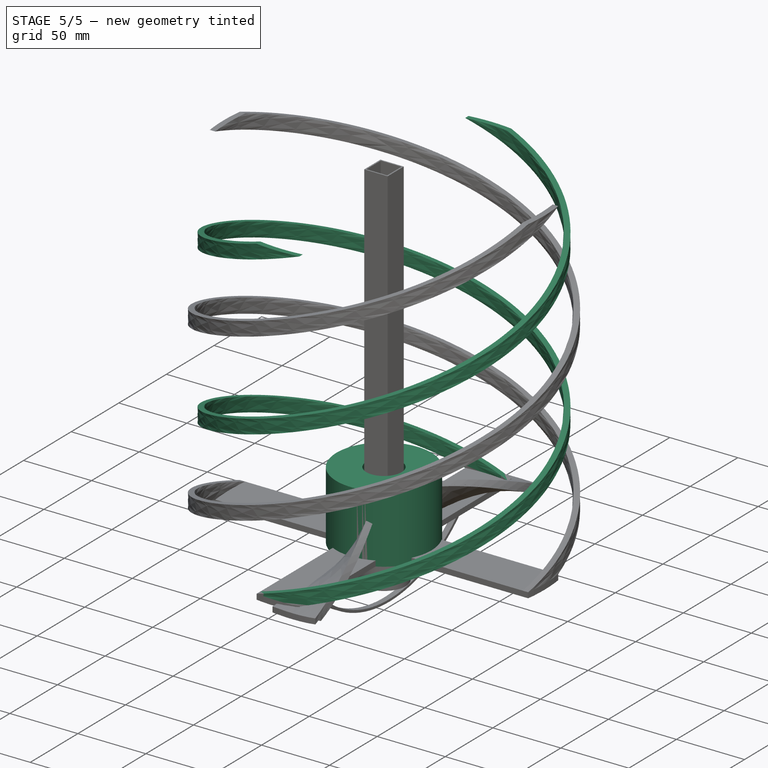
[diagram: stage 5 of 5 — iso view after this stage's code; geometry added in this stage tinted green]
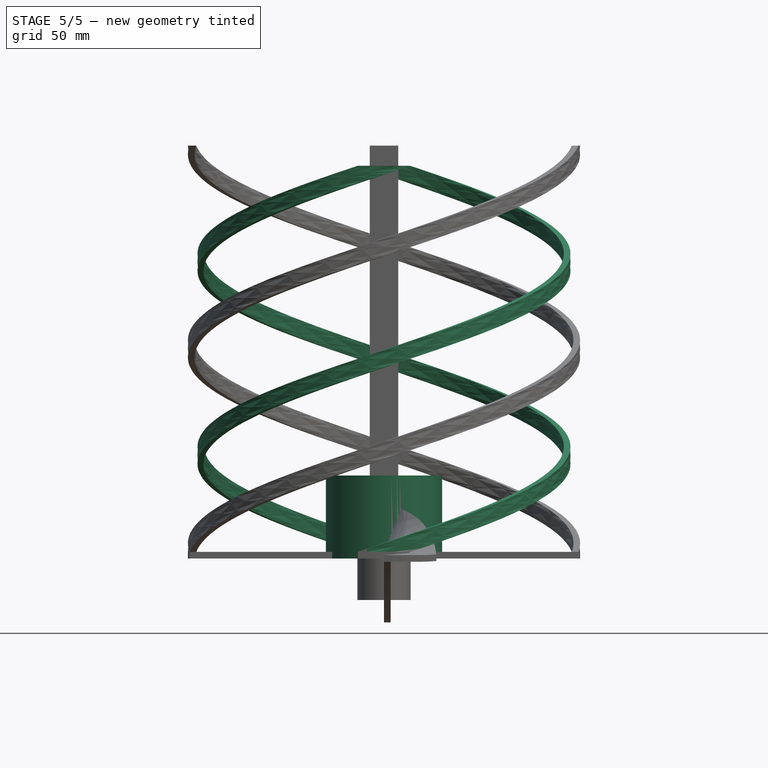
[diagram: stage 5 of 5 — front view after this stage's code; geometry added in this stage tinted green]
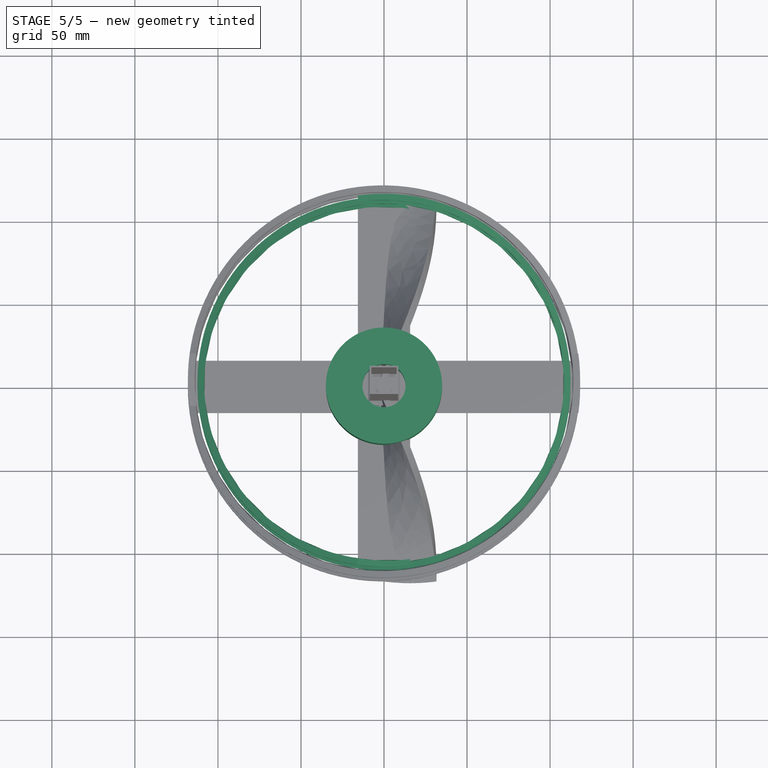
[diagram: stage 5 of 5 — top view after this stage's code; geometry added in this stage tinted green]
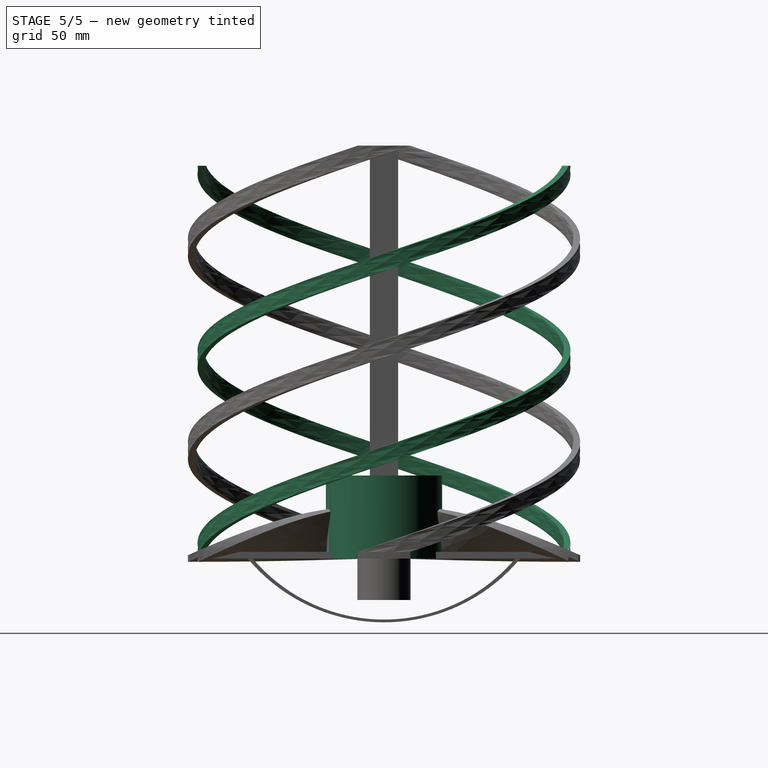
[diagram: stage 5 of 5 — right view after this stage's code; geometry added in this stage tinted green]
FEATURE [Spreadsheet::Sheet] Spreadsheet  label="NumbersForDesign"
  cells = B1='Info; C1='https://jcoppens.com/ant/qfh/calc.en.php; A2='#turns; B2(turns)=1; A3='H1; B3(H1Large)=248.6; C3='@145; A4='D1; B4(D1Large)=236.2; A5='H2; B5(H2Small)=236.5; A6='D2; B6(D2Small)=224.6; A7='helixCrossLength; B7(helixCrossLength)=10; A8='margin; B8(margin)=0.2; A9='widthFoil; B9(widthFoil)=10; A10='helixThickness; B10(helixThickness)=4; A11='heightSmall; B11(heightSmall)==H1Large - H2Small - helixThickness; C11='Padding to hold small helix between large; A12='radiusCenter; B12(radiusCenter)=6; A13='direction; B13(direction)=0; A14='helixElevation; B14(helixElevation)==atan(H1Large / (pi * D1Large)); A15='helixBase; B15(helixBase)==widthFoil / sin(helixElevation); B16='Calculated; C16='Do not change
FEATURE [Sketcher::SketchObject] Sketch018
  FullyConstrained = true
  MapMode = 5
  Support = -> [XY_Plane010]
  expr: Constraints[1] = <<InsertSheet>>.r4
  sketch-geometry (1):
    g0: Circle CenterX=0 CenterY=0 CenterZ=0 NormalX=0 NormalY=0 NormalZ=1 AngleXU=0 Radius=35
  constraints (2):
    c: Coincident(g0,g-1)
    c: Radius(g0) = 35
FEATURE [Spreadsheet::Sheet] Spreadsheet001  label="InsertSheet"
  cells = A1='r1; B1(r1)=13; A2='r2; B2(r2)=28; A3='r3; B3(r3)==62 / 2; A4='r4; B4(r4)=35; A5='margin; B5(margin)=0.1; A6='height; B6(height)=50
FEATURE [PartDesign::Pad] Pad013
  Direction = (0,0,1)
  Length = 50
  Length2 = 10
  Profile = -> Sketch018
  ReferenceAxis = -> Sketch018 [N_Axis]
  Type = 0
  expr: Length = <<InsertSheet>>.height
FEATURE [Sketcher::SketchObject] Sketch019
  FullyConstrained = true
  MapMode = 5
  Placement = pos=(0,0,0) rot=(1,0,0;3.14159rad)
  Support = -> [Pad013]
  expr: Constraints[1] = <<InsertSheet>>.r3
  sketch-geometry (1):
    g0: Circle CenterX=0 CenterY=0 CenterZ=0 NormalX=0 NormalY=0 NormalZ=1 AngleXU=0 Radius=31
  constraints (2):
    c: Coincident(g0,g-1)
    c: Radius(g0) = 31
FEATURE [PartDesign::Pocket] Pocket002
  BaseFeature = -> Pad013
  Direction = (0,0,1)
  Length = 45
  Length2 = 5
  Profile = -> Sketch019
  ReferenceAxis = -> Sketch019 [N_Axis]
  Type = 0
  expr: Length = <<InsertSheet>>.height - 5
FEATURE [Sketcher::SketchObject] Sketch020
  FullyConstrained = true
  MapMode = 5
  Placement = pos=(0,0,45) rot=(1,0,0;3.14159rad)
  Support = -> [Pocket002]
  expr: Constraints[1] = <<InsertSheet>>.r2
  sketch-geometry (1):
    g0: Circle CenterX=0 CenterY=0 CenterZ=0 NormalX=0 NormalY=0 NormalZ=1 AngleXU=0 Radius=28
  constraints (2):
    c: Coincident(g0,g-1)
    c: Radius(g0) = 28
FEATURE [PartDesign::Pad] Pad014
  BaseFeature = -> Pocket002
  Direction = (0,0,-1)
  Length = 20
  Length2 = 10
  Profile = -> Sketch020
  ReferenceAxis = -> Sketch020 [N_Axis]
  Type = 0
FEATURE [Sketcher::SketchObject] Sketch021
  FullyConstrained = true
  MapMode = 5
  Placement = pos=(0,0,25) rot=(1,0,0;3.14159rad)
  Support = -> [Pad014]
  expr: Constraints[1] = <<InsertSheet>>.r1
  sketch-geometry (1):
    g0: Circle CenterX=0 CenterY=0 CenterZ=0 NormalX=0 NormalY=0 NormalZ=1 AngleXU=0 Radius=13
  constraints (2):
    c: Coincident(g0,g-1)
    c: Radius(g0) = 13
FEATURE [PartDesign::Pocket] Pocket003
  BaseFeature = -> Pad014
  Direction = (0,0,1)
  Length = 5
  Length2 = 5
  Profile = -> Sketch021
  ReferenceAxis = -> Sketch021 [N_Axis]
  Type = 1
FEATURE [Sketcher::SketchObject] Sketch049
  ExternalGeometry = -> [PolarPattern001]
  FullyConstrained = false
  MapMode = 5
  Placement = pos=(0,0,4) rot=(0,0,1;0rad)
  Support = -> [PolarPattern001]
  expr: Constraints[5] = Spreadsheet.helixThickness
  sketch-geometry (4):
    g0: ArcOfCircle CenterX=0 CenterY=0 CenterZ=0 NormalX=0 NormalY=0 NormalZ=1 AngleXU=0 Radius=112.3 StartAngle=1.43018 EndAngle=1.71142
    g1: ArcOfCircle CenterX=-1.77781 CenterY=1.69795 CenterZ=0 NormalX=0 NormalY=0 NormalZ=1 AngleXU=0 Radius=106.938 StartAngle=1.40624 EndAngle=1.70173
    g2: LineSegment StartX=-15.7397 StartY=111.192 StartZ=0 EndX=-15.7397 EndY=107.721 EndZ=0
    g3: LineSegment StartX=15.7397 StartY=111.192 StartZ=0 EndX=15.7397 EndY=107.192 EndZ=0
  constraints (10):
    c: Coincident(g0,g-1)
    c: Coincident(g0,g-3)
    c: Vertical(g0,g-4)
    c: PointOnObject(g1,g-3)
    c: PointOnObject(g1,g-4)
    c: DistanceY(g1,g0) = 4
    c: Coincident(g2,g0)
    c: Coincident(g1,g2)
    c: Coincident(g3,g0)
    c: Coincident(g3,g1)
FEATURE [PartDesign::AdditiveHelix] AdditiveHelix001  label="SmallHelixA"
  Angle = 0
  Axis = (1e-16,1e-16,1)
  Base = (0,0,0)
  BaseFeature = -> PolarPattern001
  Growth = 0
  HasBeenEdited = true
  Height = 232.5
  LeftHanded = false
  Mode = 2
  Outside = false
  Pitch = 232.5
  Profile = -> Sketch049
  ReferenceAxis = -> Z_Axis
  Turns = 1
  expr: Height = Spreadsheet.H2Small - Spreadsheet.helixThickness
  expr: Turns = Spreadsheet.turns
FEATURE [PartDesign::PolarPattern] PolarPattern002  label="SmallHelixB"
  Angle = 360
  Axis = -> Sketch049 [N_Axis]
  BaseFeature = -> AdditiveHelix001
  Occurrences = 2
  Originals = -> [AdditiveHelix001]
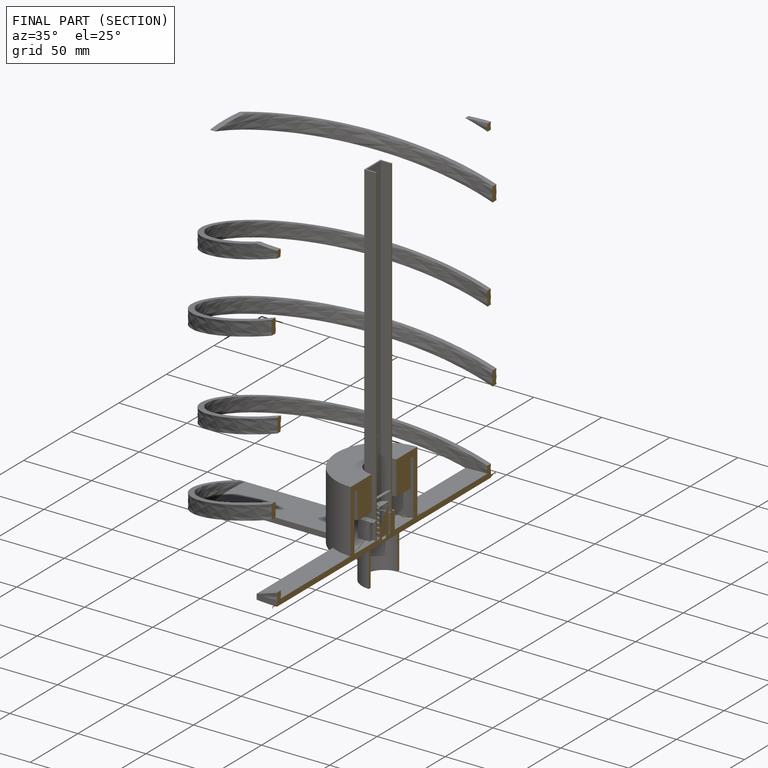
[diagram: finished part — half-section view (interior)]
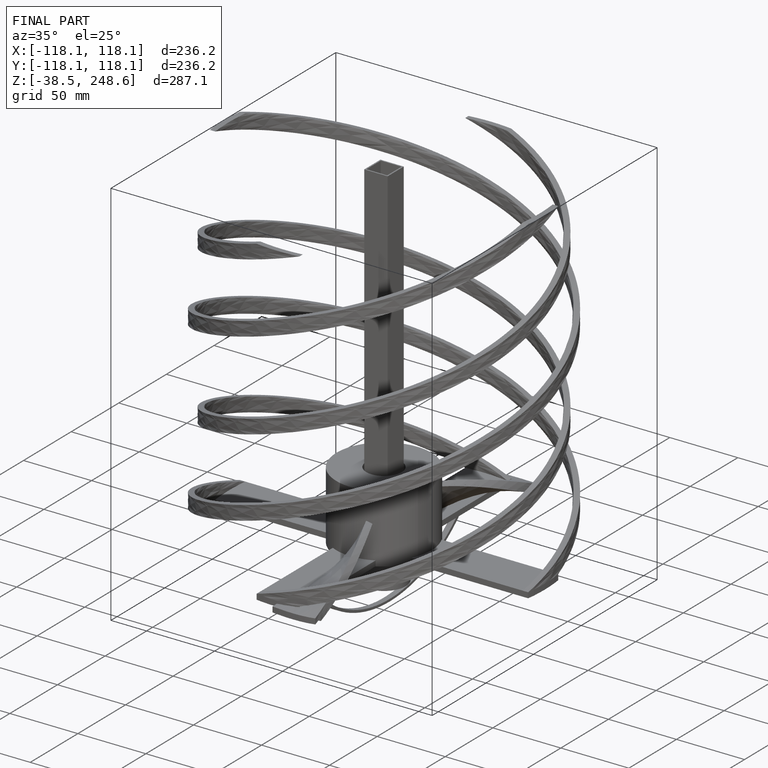
[diagram: finished part — iso view with bounding-box wireframe]
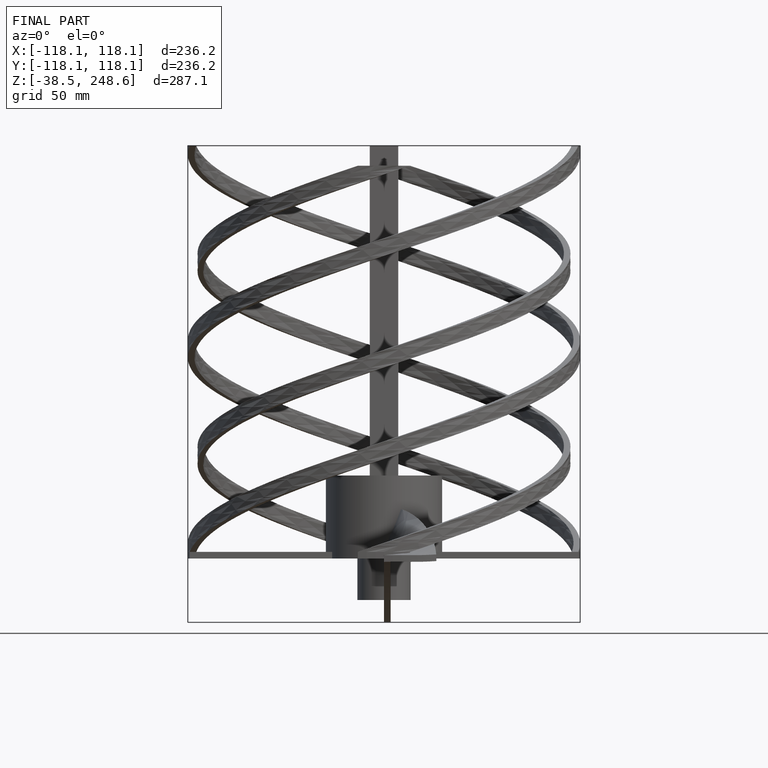
[diagram: finished part — front view with bounding-box wireframe]
